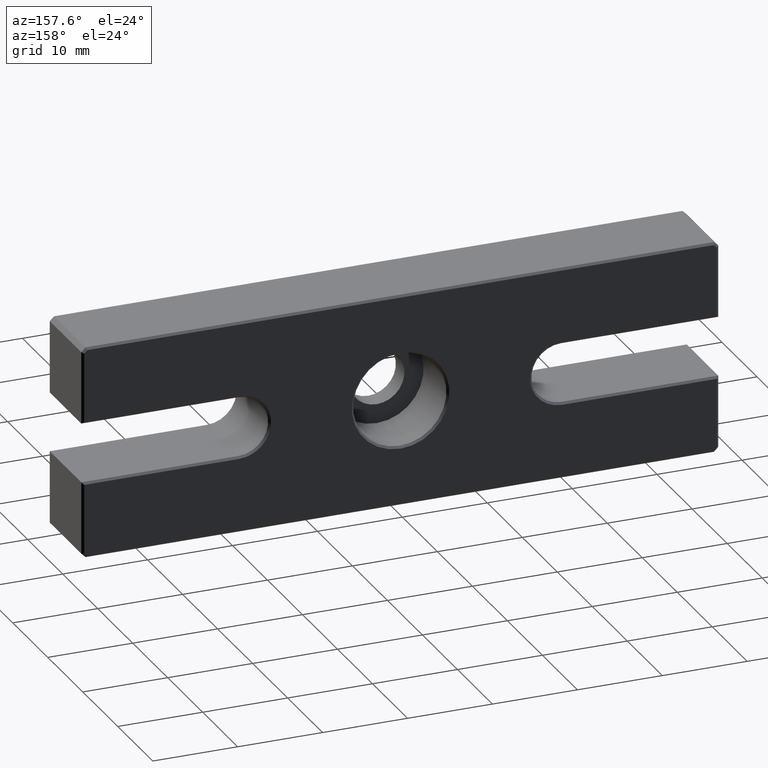
[diagram: clean part render]
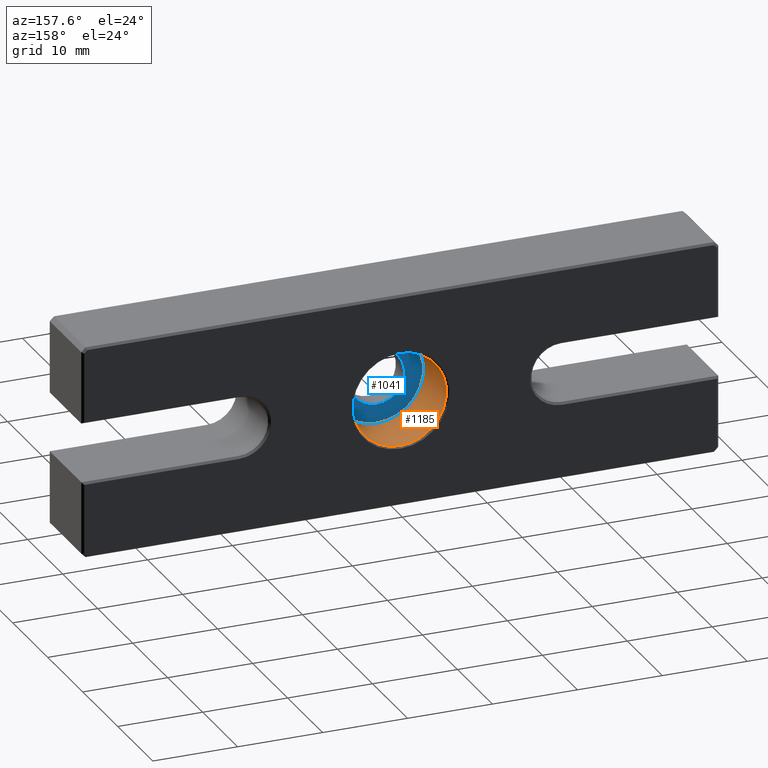
[diagram: same view with the hole feature highlighted: cylindrical wall and planar end face, labeled with their STEP entity ids]
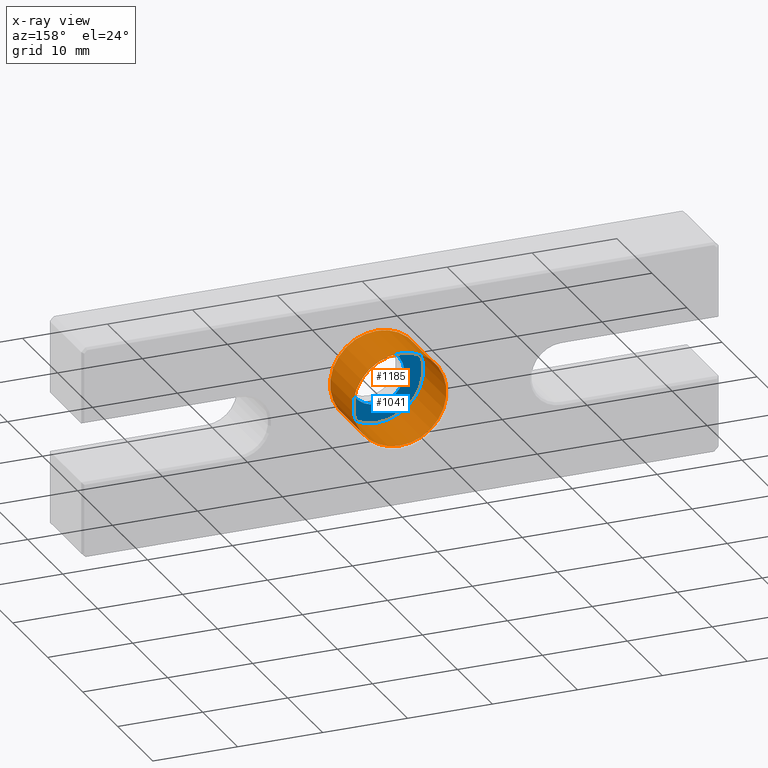
[diagram: x-ray of the same camera — body ghosted, the hole faces saturated]
A machine part, auxiliary view. The highlighted faces form one hole feature of diameter 11 mm: the cylindrical wall (entity #1185, orange) and its adjacent planar end face (entity #1041, blue) — they share a circular edge in the B-rep.
The next image is the same camera in x-ray (body ghosted, the hole faces saturated) — the bore reads through the body.
Wall:
#77 = FACE_OUTER_BOUND ( 'NONE', #130, .T. ) ;
#88 = AXIS2_PLACEMENT_3D ( 'NONE', #510, #1100, #987 ) ;
#130 = EDGE_LOOP ( 'NONE', ( #980 ) ) ;
#138 = EDGE_CURVE ( 'NONE', #759, #759, #1238, .T. ) ;
#381 = AXIS2_PLACEMENT_3D ( 'NONE', #1420, #837, #1306 ) ;
#386 = CARTESIAN_POINT ( 'NONE',  ( 0.000000000000000000, 9.249999999999989342, 5.500000000000011546 ) ) ;
#399 = CARTESIAN_POINT ( 'NONE',  ( 0.000000000000000000, 2.700000000000000178, 5.500000000000013323 ) ) ;
#510 = CARTESIAN_POINT ( 'NONE',  ( 0.000000000000000000, 2.700000000000000178, 0.000000000000000000 ) ) ;
#562 = ORIENTED_EDGE ( 'NONE', *, *, #1020, .F. ) ;
#748 = EDGE_LOOP ( 'NONE', ( #562 ) ) ;
#759 = VERTEX_POINT ( 'NONE', #386 ) ;
#801 = CYLINDRICAL_SURFACE ( 'NONE', #974, 5.500000000000011546 ) ;
#837 = DIRECTION ( 'NONE',  ( 0.000000000000000000, 1.000000000000000000, 0.000000000000000000 ) ) ;
#911 = DIRECTION ( 'NONE',  ( -0.000000000000000000, 1.000000000000000000, -0.000000000000000000 ) ) ;
#974 = AXIS2_PLACEMENT_3D ( 'NONE', #1140, #911, #1269 ) ;
#980 = ORIENTED_EDGE ( 'NONE', *, *, #138, .T. ) ;
#985 = VERTEX_POINT ( 'NONE', #399 ) ;
#987 = DIRECTION ( 'NONE',  ( 0.000000000000000000, 0.000000000000000000, 1.000000000000000000 ) ) ;
#1020 = EDGE_CURVE ( 'NONE', #985, #985, #1414, .T. ) ;
#1100 = DIRECTION ( 'NONE',  ( -0.000000000000000000, 1.000000000000000000, -0.000000000000000000 ) ) ;
#1140 = CARTESIAN_POINT ( 'NONE',  ( 0.000000000000000000, 9.500000000000000000, 0.000000000000000000 ) ) ;
#1185 = ADVANCED_FACE ( 'NONE', ( #77, #1385 ), #801, .F. ) ;
#1238 = CIRCLE ( 'NONE', #381, 5.500000000000011546 ) ;
#1269 = DIRECTION ( 'NONE',  ( 0.000000000000000000, 0.000000000000000000, 1.000000000000000000 ) ) ;
#1306 = DIRECTION ( 'NONE',  ( 0.000000000000000000, 0.000000000000000000, 1.000000000000000000 ) ) ;
#1385 = FACE_OUTER_BOUND ( 'NONE', #748, .T. ) ;
#1414 = CIRCLE ( 'NONE', #88, 5.500000000000013323 ) ;
#1420 = CARTESIAN_POINT ( 'NONE',  ( 0.000000000000000000, 9.249999999999989342, 0.000000000000000000 ) ) ;
End face:
#46 = FACE_BOUND ( 'NONE', #1308, .T. ) ;
#88 = AXIS2_PLACEMENT_3D ( 'NONE', #510, #1100, #987 ) ;
#94 = CARTESIAN_POINT ( 'NONE',  ( 0.000000000000000000, 2.700000000000000178, 0.000000000000000000 ) ) ;
#163 = AXIS2_PLACEMENT_3D ( 'NONE', #94, #662, #1500 ) ;
#277 = FACE_OUTER_BOUND ( 'NONE', #824, .T. ) ;
#285 = AXIS2_PLACEMENT_3D ( 'NONE', #1363, #409, #1328 ) ;
#399 = CARTESIAN_POINT ( 'NONE',  ( 0.000000000000000000, 2.700000000000000178, 5.500000000000013323 ) ) ;
#409 = DIRECTION ( 'NONE',  ( 0.000000000000000000, -1.000000000000000000, 0.000000000000000000 ) ) ;
#510 = CARTESIAN_POINT ( 'NONE',  ( 0.000000000000000000, 2.700000000000000178, 0.000000000000000000 ) ) ;
#616 = ORIENTED_EDGE ( 'NONE', *, *, #1020, .T. ) ;
#662 = DIRECTION ( 'NONE',  ( -0.000000000000000000, 1.000000000000000000, -0.000000000000000000 ) ) ;
#704 = CIRCLE ( 'NONE', #163, 3.250000000000012434 ) ;
#738 = PLANE ( 'NONE',  #285 ) ;
#824 = EDGE_LOOP ( 'NONE', ( #616 ) ) ;
#867 = VERTEX_POINT ( 'NONE', #1228 ) ;
#985 = VERTEX_POINT ( 'NONE', #399 ) ;
#987 = DIRECTION ( 'NONE',  ( 0.000000000000000000, 0.000000000000000000, 1.000000000000000000 ) ) ;
#1020 = EDGE_CURVE ( 'NONE', #985, #985, #1414, .T. ) ;
#1041 = ADVANCED_FACE ( 'NONE', ( #46, #277 ), #738, .F. ) ;
#1100 = DIRECTION ( 'NONE',  ( -0.000000000000000000, 1.000000000000000000, -0.000000000000000000 ) ) ;
#1118 = EDGE_CURVE ( 'NONE', #867, #867, #704, .T. ) ;
#1228 = CARTESIAN_POINT ( 'NONE',  ( 0.000000000000000000, 2.700000000000000178, 3.250000000000012434 ) ) ;
#1308 = EDGE_LOOP ( 'NONE', ( #1384 ) ) ;
#1328 = DIRECTION ( 'NONE',  ( 0.000000000000000000, -0.000000000000000000, -1.000000000000000000 ) ) ;
#1363 = CARTESIAN_POINT ( 'NONE',  ( 3.250000000000012434, 2.700000000000000178, 0.000000000000000000 ) ) ;
#1384 = ORIENTED_EDGE ( 'NONE', *, *, #1118, .F. ) ;
#1414 = CIRCLE ( 'NONE', #88, 5.500000000000013323 ) ;
#1500 = DIRECTION ( 'NONE',  ( 0.000000000000000000, 0.000000000000000000, 1.000000000000000000 ) ) ;